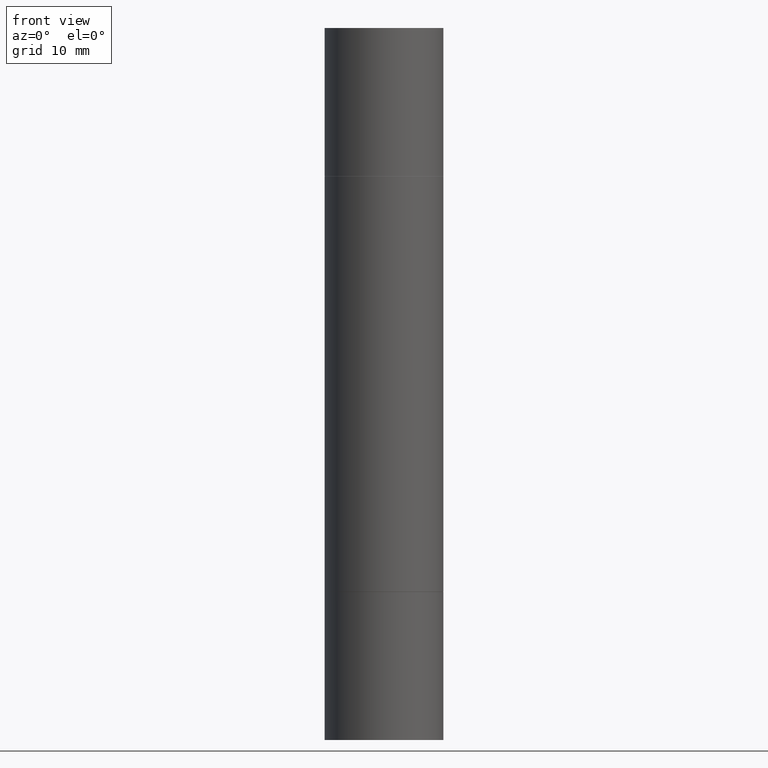
[diagram: clean part render]
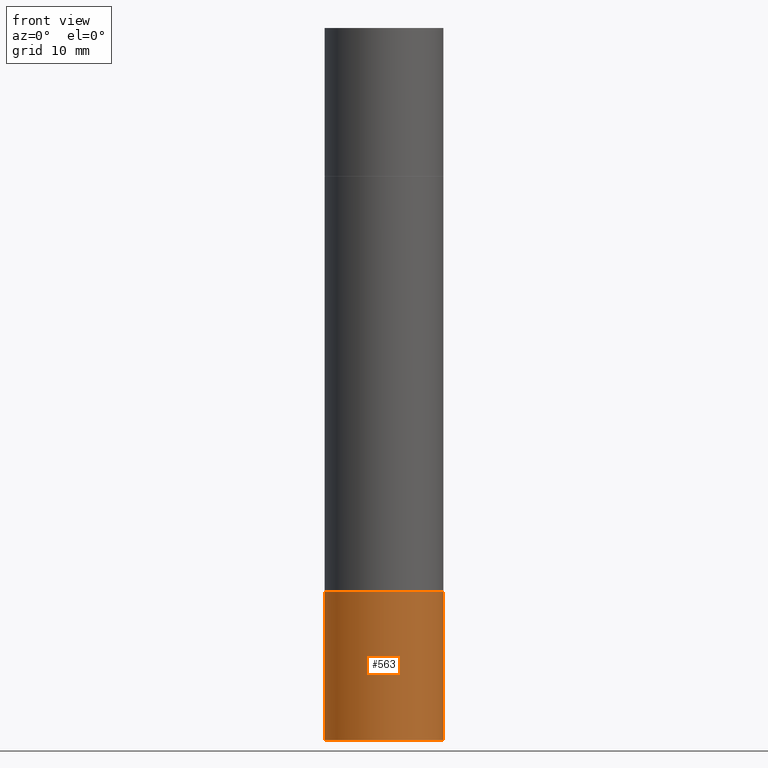
[diagram: same view with one face highlighted and labeled with its STEP entity id]
A machine part, front view. The second image highlights one B-rep face of the part: STEP entity #563.
In plain terms, the highlighted cylindrical surface (partial cylindrical patch) has radius 6.35 mm, axis along (-0, 0, 1).
Its self-contained STEP definition (entity closure, byte-faithful):
#8 = CYLINDRICAL_SURFACE ( 'NONE', #556, 0.2500000000000000000 ) ;
#37 = LINE ( 'NONE', #258, #513 ) ;
#55 = VERTEX_POINT ( 'NONE', #299 ) ;
#77 = ORIENTED_EDGE ( 'NONE', *, *, #332, .T. ) ;
#86 = AXIS2_PLACEMENT_3D ( 'NONE', #260, #471, #188 ) ;
#92 = VECTOR ( 'NONE', #282, 39.37007874015748143 ) ;
#101 = CARTESIAN_POINT ( 'NONE',  ( -0.2500000000000000000, 1.776356839400250465E-15, -1.229733772563726445E-29 ) ) ;
#119 = CIRCLE ( 'NONE', #584, 0.2500000000000000000 ) ;
#123 = EDGE_CURVE ( 'NONE', #55, #219, #470, .T. ) ;
#165 = ORIENTED_EDGE ( 'NONE', *, *, #123, .T. ) ;
#188 = DIRECTION ( 'NONE',  ( 1.000000000000000000, -6.982962677686262766E-15, 0.000000000000000000 ) ) ;
#219 = VERTEX_POINT ( 'NONE', #423 ) ;
#220 = CARTESIAN_POINT ( 'NONE',  ( 0.000000000000000000, 0.000000000000000000, 0.000000000000000000 ) ) ;
#255 = CARTESIAN_POINT ( 'NONE',  ( -0.2500000000000000000, -7.606999258740704349E-15, -2.375000000000000000 ) ) ;
#257 = ORIENTED_EDGE ( 'NONE', *, *, #477, .F. ) ;
#258 = CARTESIAN_POINT ( 'NONE',  ( 0.2500000000000000000, -1.745740669421566678E-15, 1.219044193948983948E-29 ) ) ;
#260 = CARTESIAN_POINT ( 'NONE',  ( 7.336406418555409790E-29, -1.047444401652943635E-14, -3.000000000000000444 ) ) ;
#282 = DIRECTION ( 'NONE',  ( -2.445468806185136877E-29, 3.491481338843145188E-15, 1.000000000000000000 ) ) ;
#299 = CARTESIAN_POINT ( 'NONE',  ( -0.2500000000000000000, -7.606999258740704349E-15, -3.000000000000000444 ) ) ;
#310 = DIRECTION ( 'NONE',  ( -2.445468806185136597E-29, 3.491481338843145583E-15, 1.000000000000000000 ) ) ;
#332 = EDGE_CURVE ( 'NONE', #219, #612, #37, .T. ) ;
#362 = VERTEX_POINT ( 'NONE', #255 ) ;
#366 = EDGE_CURVE ( 'NONE', #362, #612, #119, .T. ) ;
#377 = CARTESIAN_POINT ( 'NONE',  ( 0.2500000000000000000, -1.003800884917403837E-14, -2.375000000000000000 ) ) ;
#417 = DIRECTION ( 'NONE',  ( 1.000000000000000000, -6.982962677686266711E-15, 4.876176775795935793E-29 ) ) ;
#423 = CARTESIAN_POINT ( 'NONE',  ( 0.2500000000000000000, -1.222018468595100303E-14, -3.000000000000000444 ) ) ;
#428 = DIRECTION ( 'NONE',  ( -2.445468806185136597E-29, 3.491481338843145583E-15, 1.000000000000000000 ) ) ;
#454 = CARTESIAN_POINT ( 'NONE',  ( 5.807988414689700538E-29, -8.292268179752471696E-15, -2.375000000000000000 ) ) ;
#455 = EDGE_LOOP ( 'NONE', ( #257, #165, #77, #676 ) ) ;
#470 = CIRCLE ( 'NONE', #86, 0.2500000000000000000 ) ;
#471 = DIRECTION ( 'NONE',  ( -2.445468806185136597E-29, 3.491481338843145583E-15, 1.000000000000000000 ) ) ;
#477 = EDGE_CURVE ( 'NONE', #55, #362, #566, .T. ) ;
#513 = VECTOR ( 'NONE', #674, 39.37007874015748143 ) ;
#556 = AXIS2_PLACEMENT_3D ( 'NONE', #220, #428, #417 ) ;
#563 = ADVANCED_FACE ( 'NONE', ( #653 ), #8, .T. ) ;
#566 = LINE ( 'NONE', #101, #92 ) ;
#584 = AXIS2_PLACEMENT_3D ( 'NONE', #454, #310, #671 ) ;
#612 = VERTEX_POINT ( 'NONE', #377 ) ;
#653 = FACE_OUTER_BOUND ( 'NONE', #455, .T. ) ;
#671 = DIRECTION ( 'NONE',  ( 1.000000000000000000, -6.982962677686266711E-15, 0.000000000000000000 ) ) ;
#674 = DIRECTION ( 'NONE',  ( -2.445468806185136877E-29, 3.491481338843145188E-15, 1.000000000000000000 ) ) ;
#676 = ORIENTED_EDGE ( 'NONE', *, *, #366, .F. ) ;